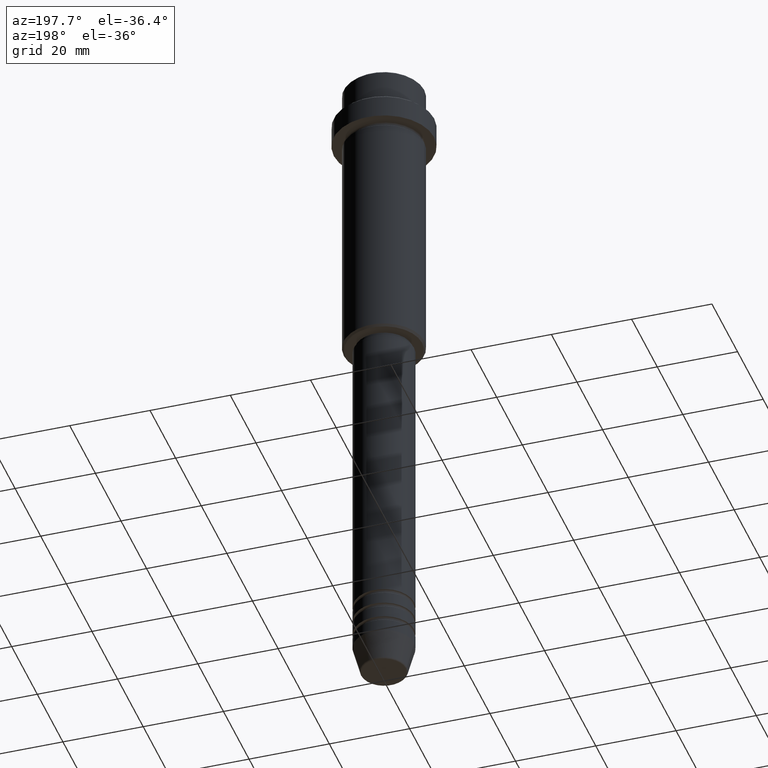
[diagram: clean part render]
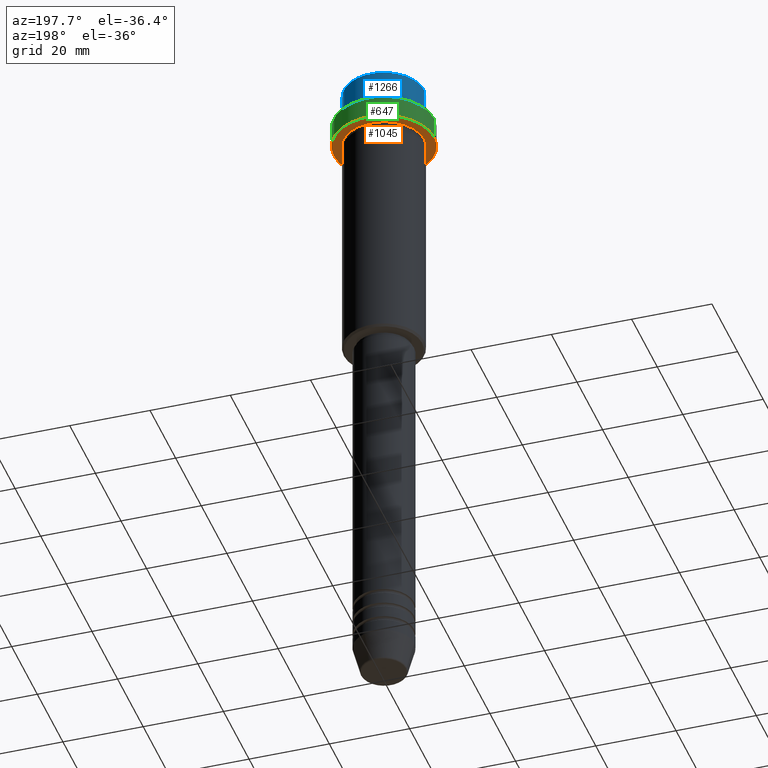
[diagram: same view with three faces highlighted in distinct colors, each labeled with its STEP entity id]
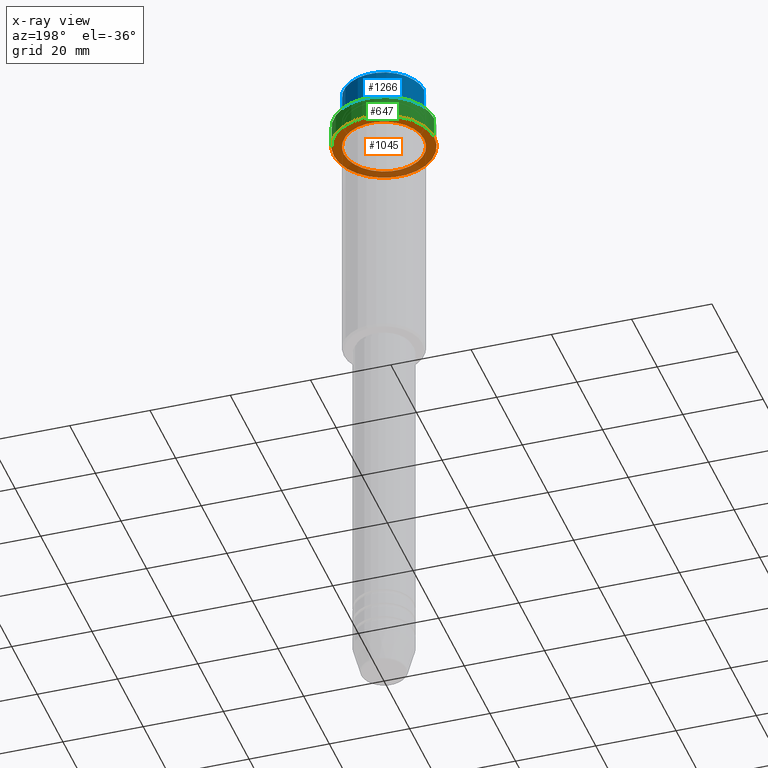
[diagram: x-ray of the same camera — body ghosted, the three highlighted faces saturated]
A machine part, auxiliary view with three faces highlighted in distinct colors.
The next image is the same camera in x-ray (body ghosted, the three faces saturated) — at least one of them is partly hidden behind the body in this view.
Their STEP definitions:

[orange] entity #1045 — the highlighted planar face has unit normal (0, 0, -1).
#28 = PLANE ( 'NONE',  #798 ) ;
#61 = CARTESIAN_POINT ( 'NONE',  ( 9.999999999999992895, 1.224646799147352468E-15, -15.00000000000000000 ) ) ;
#161 = DIRECTION ( 'NONE',  ( -0.000000000000000000, -0.000000000000000000, 1.000000000000000000 ) ) ;
#168 = CARTESIAN_POINT ( 'NONE',  ( -12.50000000000000000, 1.530808498934191521E-15, -15.00000000000000000 ) ) ;
#179 = DIRECTION ( 'NONE',  ( -0.000000000000000000, -0.000000000000000000, 1.000000000000000000 ) ) ;
#228 = CARTESIAN_POINT ( 'NONE',  ( 12.50000000000000000, 0.000000000000000000, -15.00000000000000000 ) ) ;
#256 = AXIS2_PLACEMENT_3D ( 'NONE', #1354, #1138, #793 ) ;
#262 = CARTESIAN_POINT ( 'NONE',  ( 0.000000000000000000, 12.50000000000000000, -15.00000000000000000 ) ) ;
#326 = ORIENTED_EDGE ( 'NONE', *, *, #569, .T. ) ;
#358 = FACE_OUTER_BOUND ( 'NONE', #608, .T. ) ;
#361 = CIRCLE ( 'NONE', #1154, 9.999999999999992895 ) ;
#367 = DIRECTION ( 'NONE',  ( 0.000000000000000000, 0.000000000000000000, -1.000000000000000000 ) ) ;
#393 = VERTEX_POINT ( 'NONE', #168 ) ;
#408 = ORIENTED_EDGE ( 'NONE', *, *, #1246, .T. ) ;
#416 = VERTEX_POINT ( 'NONE', #560 ) ;
#445 = EDGE_CURVE ( 'NONE', #393, #836, #682, .T. ) ;
#456 = CIRCLE ( 'NONE', #639, 9.999999999999992895 ) ;
#462 = ORIENTED_EDGE ( 'NONE', *, *, #445, .F. ) ;
#501 = EDGE_LOOP ( 'NONE', ( #326, #408 ) ) ;
#547 = VERTEX_POINT ( 'NONE', #61 ) ;
#549 = DIRECTION ( 'NONE',  ( 1.000000000000000000, 0.000000000000000000, 0.000000000000000000 ) ) ;
#560 = CARTESIAN_POINT ( 'NONE',  ( -9.999999999999992895, 0.000000000000000000, -15.00000000000000000 ) ) ;
#569 = EDGE_CURVE ( 'NONE', #416, #547, #456, .T. ) ;
#608 = EDGE_LOOP ( 'NONE', ( #1362, #462 ) ) ;
#639 = AXIS2_PLACEMENT_3D ( 'NONE', #700, #161, #1227 ) ;
#682 = CIRCLE ( 'NONE', #1107, 12.50000000000000000 ) ;
#700 = CARTESIAN_POINT ( 'NONE',  ( 0.000000000000000000, 0.000000000000000000, -15.00000000000000000 ) ) ;
#713 = CARTESIAN_POINT ( 'NONE',  ( 0.000000000000000000, 0.000000000000000000, -15.00000000000000000 ) ) ;
#763 = DIRECTION ( 'NONE',  ( -0.000000000000000000, -0.000000000000000000, 1.000000000000000000 ) ) ;
#793 = DIRECTION ( 'NONE',  ( 1.000000000000000000, 0.000000000000000000, 0.000000000000000000 ) ) ;
#798 = AXIS2_PLACEMENT_3D ( 'NONE', #262, #367, #908 ) ;
#821 = CIRCLE ( 'NONE', #256, 12.50000000000000000 ) ;
#836 = VERTEX_POINT ( 'NONE', #228 ) ;
#908 = DIRECTION ( 'NONE',  ( -1.000000000000000000, 0.000000000000000000, -0.000000000000000000 ) ) ;
#1029 = EDGE_CURVE ( 'NONE', #836, #393, #821, .T. ) ;
#1045 = ADVANCED_FACE ( 'NONE', ( #1343, #358 ), #28, .T. ) ;
#1107 = AXIS2_PLACEMENT_3D ( 'NONE', #1112, #763, #549 ) ;
#1112 = CARTESIAN_POINT ( 'NONE',  ( 0.000000000000000000, 0.000000000000000000, -15.00000000000000000 ) ) ;
#1138 = DIRECTION ( 'NONE',  ( -0.000000000000000000, -0.000000000000000000, 1.000000000000000000 ) ) ;
#1154 = AXIS2_PLACEMENT_3D ( 'NONE', #713, #179, #1160 ) ;
#1160 = DIRECTION ( 'NONE',  ( -1.000000000000000000, 0.000000000000000000, 0.000000000000000000 ) ) ;
#1227 = DIRECTION ( 'NONE',  ( -1.000000000000000000, 0.000000000000000000, 0.000000000000000000 ) ) ;
#1246 = EDGE_CURVE ( 'NONE', #547, #416, #361, .T. ) ;
#1343 = FACE_BOUND ( 'NONE', #501, .T. ) ;
#1354 = CARTESIAN_POINT ( 'NONE',  ( 0.000000000000000000, 0.000000000000000000, -15.00000000000000000 ) ) ;
#1362 = ORIENTED_EDGE ( 'NONE', *, *, #1029, .F. ) ;

[blue] entity #1266 — the highlighted cylindrical surface (partial cylindrical patch) has radius 10 mm, axis along (-0, -0, 1).
#14 = DIRECTION ( 'NONE',  ( -0.000000000000000000, -0.000000000000000000, 1.000000000000000000 ) ) ;
#16 = DIRECTION ( 'NONE',  ( -0.000000000000000000, -0.000000000000000000, 1.000000000000000000 ) ) ;
#51 = VECTOR ( 'NONE', #719, 1000.000000000000000 ) ;
#114 = ORIENTED_EDGE ( 'NONE', *, *, #1129, .T. ) ;
#120 = LINE ( 'NONE', #550, #840 ) ;
#191 = AXIS2_PLACEMENT_3D ( 'NONE', #1076, #502, #1370 ) ;
#204 = ORIENTED_EDGE ( 'NONE', *, *, #1213, .T. ) ;
#212 = CIRCLE ( 'NONE', #191, 9.999999999999998224 ) ;
#219 = VERTEX_POINT ( 'NONE', #225 ) ;
#225 = CARTESIAN_POINT ( 'NONE',  ( -9.999999999999998224, 1.224646799147353059E-15, -0.4999999999999970024 ) ) ;
#230 = EDGE_CURVE ( 'NONE', #598, #837, #120, .T. ) ;
#336 = CARTESIAN_POINT ( 'NONE',  ( 0.000000000000000000, 0.000000000000000000, -0.4999999999999970024 ) ) ;
#359 = CIRCLE ( 'NONE', #1153, 9.999999999999998224 ) ;
#401 = CARTESIAN_POINT ( 'NONE',  ( -9.999999999999998224, 1.224646799147353059E-15, 0.000000000000000000 ) ) ;
#414 = FACE_OUTER_BOUND ( 'NONE', #432, .T. ) ;
#432 = EDGE_LOOP ( 'NONE', ( #204, #114, #1268, #781 ) ) ;
#502 = DIRECTION ( 'NONE',  ( -0.000000000000000000, -0.000000000000000000, 1.000000000000000000 ) ) ;
#550 = CARTESIAN_POINT ( 'NONE',  ( 9.999999999999998224, 0.000000000000000000, 0.000000000000000000 ) ) ;
#595 = CARTESIAN_POINT ( 'NONE',  ( 9.999999999999998224, 0.000000000000000000, -7.999999999999998224 ) ) ;
#598 = VERTEX_POINT ( 'NONE', #595 ) ;
#646 = CYLINDRICAL_SURFACE ( 'NONE', #1003, 9.999999999999998224 ) ;
#719 = DIRECTION ( 'NONE',  ( -0.000000000000000000, -0.000000000000000000, 1.000000000000000000 ) ) ;
#770 = DIRECTION ( 'NONE',  ( 0.000000000000000000, 0.000000000000000000, -1.000000000000000000 ) ) ;
#781 = ORIENTED_EDGE ( 'NONE', *, *, #230, .F. ) ;
#837 = VERTEX_POINT ( 'NONE', #1415 ) ;
#840 = VECTOR ( 'NONE', #14, 1000.000000000000000 ) ;
#913 = EDGE_CURVE ( 'NONE', #219, #837, #359, .T. ) ;
#1003 = AXIS2_PLACEMENT_3D ( 'NONE', #1096, #16, #1326 ) ;
#1068 = LINE ( 'NONE', #401, #51 ) ;
#1076 = CARTESIAN_POINT ( 'NONE',  ( 0.000000000000000000, 0.000000000000000000, -7.999999999999998224 ) ) ;
#1096 = CARTESIAN_POINT ( 'NONE',  ( 0.000000000000000000, 0.000000000000000000, 0.000000000000000000 ) ) ;
#1102 = DIRECTION ( 'NONE',  ( 1.000000000000000000, 0.000000000000000000, 0.000000000000000000 ) ) ;
#1129 = EDGE_CURVE ( 'NONE', #1296, #219, #1068, .T. ) ;
#1153 = AXIS2_PLACEMENT_3D ( 'NONE', #336, #770, #1102 ) ;
#1185 = CARTESIAN_POINT ( 'NONE',  ( -9.999999999999998224, 1.224646799147353059E-15, -7.999999999999998224 ) ) ;
#1213 = EDGE_CURVE ( 'NONE', #598, #1296, #212, .T. ) ;
#1266 = ADVANCED_FACE ( 'NONE', ( #414 ), #646, .T. ) ;
#1268 = ORIENTED_EDGE ( 'NONE', *, *, #913, .T. ) ;
#1296 = VERTEX_POINT ( 'NONE', #1185 ) ;
#1326 = DIRECTION ( 'NONE',  ( 1.000000000000000000, 0.000000000000000000, 0.000000000000000000 ) ) ;
#1370 = DIRECTION ( 'NONE',  ( 1.000000000000000000, 0.000000000000000000, 0.000000000000000000 ) ) ;
#1415 = CARTESIAN_POINT ( 'NONE',  ( 9.999999999999998224, 0.000000000000000000, -0.4999999999999970024 ) ) ;

[green] entity #647 — the highlighted cylindrical surface (partial cylindrical patch) has radius 12.5 mm, axis along (-0, -0, 1).
#31 = DIRECTION ( 'NONE',  ( 1.000000000000000000, 0.000000000000000000, 0.000000000000000000 ) ) ;
#49 = CIRCLE ( 'NONE', #433, 12.50000000000000000 ) ;
#168 = CARTESIAN_POINT ( 'NONE',  ( -12.50000000000000000, 1.530808498934191521E-15, -15.00000000000000000 ) ) ;
#228 = CARTESIAN_POINT ( 'NONE',  ( 12.50000000000000000, 0.000000000000000000, -15.00000000000000000 ) ) ;
#242 = CARTESIAN_POINT ( 'NONE',  ( 12.50000000000000000, 0.000000000000000000, -9.500000000000019540 ) ) ;
#256 = AXIS2_PLACEMENT_3D ( 'NONE', #1354, #1138, #793 ) ;
#294 = VERTEX_POINT ( 'NONE', #242 ) ;
#348 = DIRECTION ( 'NONE',  ( 0.000000000000000000, 0.000000000000000000, -1.000000000000000000 ) ) ;
#354 = CYLINDRICAL_SURFACE ( 'NONE', #1040, 12.50000000000000000 ) ;
#371 = CARTESIAN_POINT ( 'NONE',  ( 0.000000000000000000, 0.000000000000000000, -9.500000000000019540 ) ) ;
#393 = VERTEX_POINT ( 'NONE', #168 ) ;
#433 = AXIS2_PLACEMENT_3D ( 'NONE', #371, #348, #809 ) ;
#463 = CARTESIAN_POINT ( 'NONE',  ( 0.000000000000000000, 0.000000000000000000, 0.000000000000000000 ) ) ;
#481 = EDGE_CURVE ( 'NONE', #836, #294, #1304, .T. ) ;
#538 = ORIENTED_EDGE ( 'NONE', *, *, #481, .F. ) ;
#551 = EDGE_CURVE ( 'NONE', #592, #294, #49, .T. ) ;
#592 = VERTEX_POINT ( 'NONE', #1356 ) ;
#618 = ORIENTED_EDGE ( 'NONE', *, *, #551, .T. ) ;
#643 = DIRECTION ( 'NONE',  ( -0.000000000000000000, -0.000000000000000000, 1.000000000000000000 ) ) ;
#647 = ADVANCED_FACE ( 'NONE', ( #1023 ), #354, .T. ) ;
#774 = VECTOR ( 'NONE', #643, 1000.000000000000000 ) ;
#779 = EDGE_LOOP ( 'NONE', ( #1262, #819, #618, #538 ) ) ;
#793 = DIRECTION ( 'NONE',  ( 1.000000000000000000, 0.000000000000000000, 0.000000000000000000 ) ) ;
#809 = DIRECTION ( 'NONE',  ( 1.000000000000000000, 0.000000000000000000, 0.000000000000000000 ) ) ;
#819 = ORIENTED_EDGE ( 'NONE', *, *, #1353, .T. ) ;
#821 = CIRCLE ( 'NONE', #256, 12.50000000000000000 ) ;
#836 = VERTEX_POINT ( 'NONE', #228 ) ;
#924 = VECTOR ( 'NONE', #1301, 1000.000000000000000 ) ;
#983 = CARTESIAN_POINT ( 'NONE',  ( -12.50000000000000000, 1.530808498934191521E-15, 0.000000000000000000 ) ) ;
#1023 = FACE_OUTER_BOUND ( 'NONE', #779, .T. ) ;
#1029 = EDGE_CURVE ( 'NONE', #836, #393, #821, .T. ) ;
#1040 = AXIS2_PLACEMENT_3D ( 'NONE', #463, #1139, #31 ) ;
#1138 = DIRECTION ( 'NONE',  ( -0.000000000000000000, -0.000000000000000000, 1.000000000000000000 ) ) ;
#1139 = DIRECTION ( 'NONE',  ( -0.000000000000000000, -0.000000000000000000, 1.000000000000000000 ) ) ;
#1214 = CARTESIAN_POINT ( 'NONE',  ( 12.50000000000000000, 0.000000000000000000, 0.000000000000000000 ) ) ;
#1262 = ORIENTED_EDGE ( 'NONE', *, *, #1029, .T. ) ;
#1301 = DIRECTION ( 'NONE',  ( -0.000000000000000000, -0.000000000000000000, 1.000000000000000000 ) ) ;
#1304 = LINE ( 'NONE', #1214, #774 ) ;
#1316 = LINE ( 'NONE', #983, #924 ) ;
#1353 = EDGE_CURVE ( 'NONE', #393, #592, #1316, .T. ) ;
#1354 = CARTESIAN_POINT ( 'NONE',  ( 0.000000000000000000, 0.000000000000000000, -15.00000000000000000 ) ) ;
#1356 = CARTESIAN_POINT ( 'NONE',  ( -12.50000000000000000, 1.530808498934191521E-15, -9.500000000000019540 ) ) ;